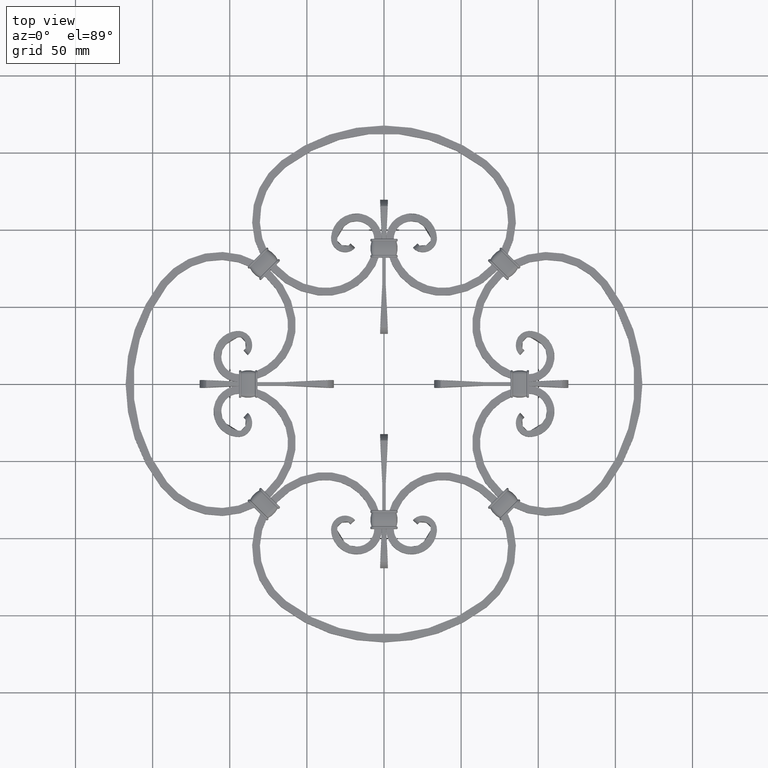
[diagram: clean part render]
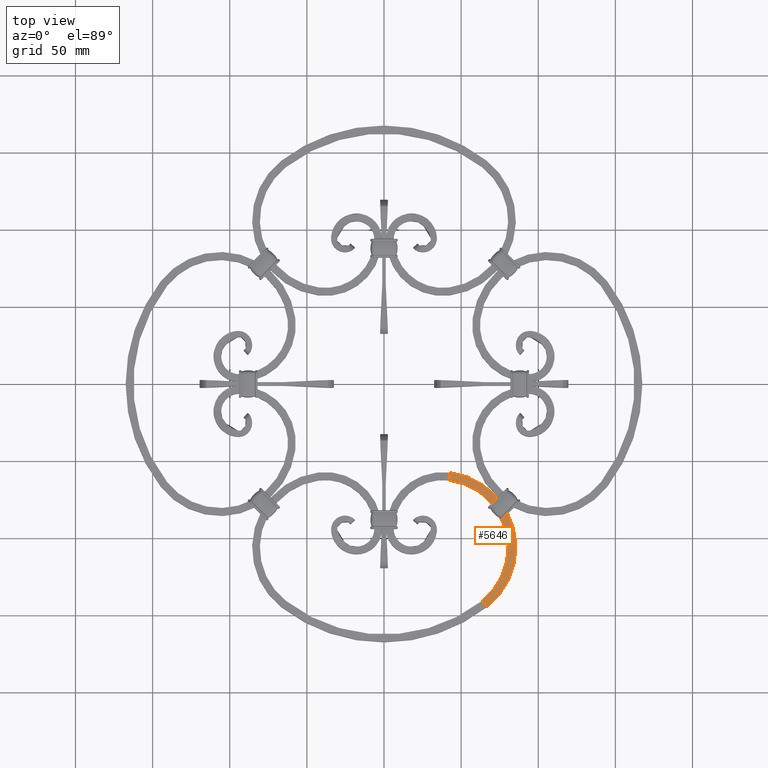
[diagram: same view with one face highlighted and labeled with its STEP entity id]
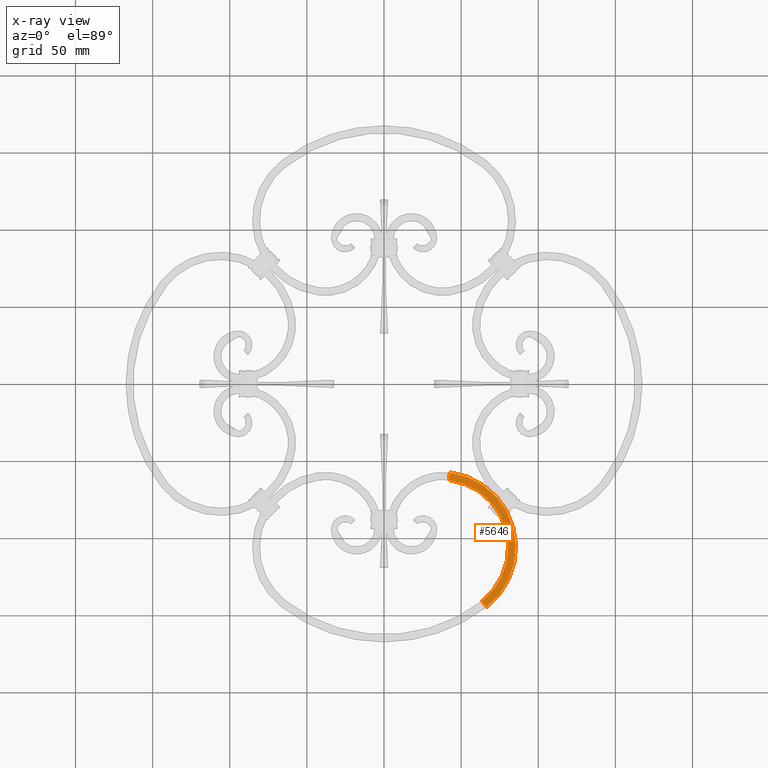
[diagram: x-ray of the same camera — body ghosted, the highlighted face saturated]
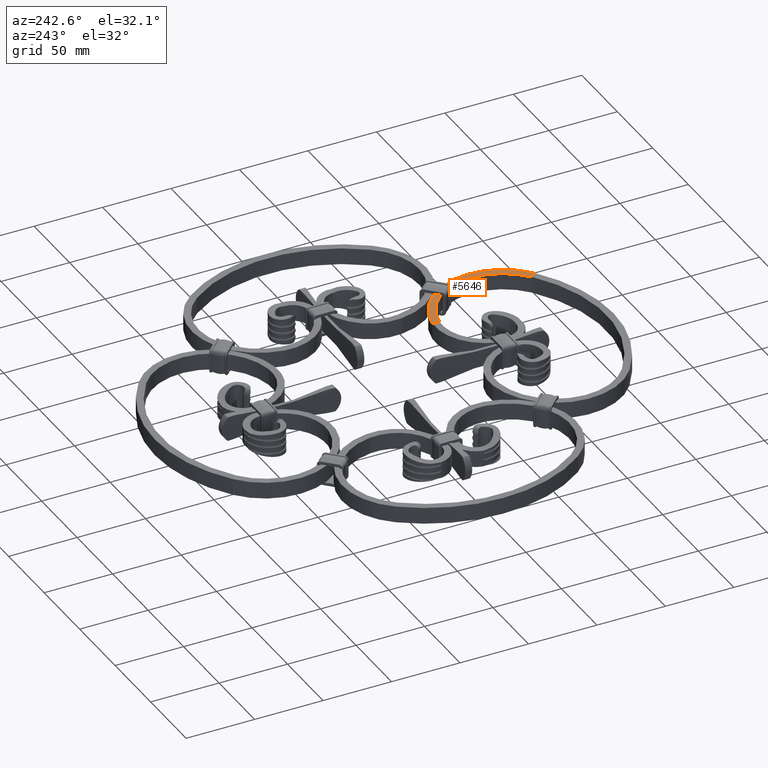
[diagram: same view with one face highlighted and labeled with its STEP entity id]
A machine part, top view. The second image highlights one B-rep face of the part: STEP entity #5646.
The next image is the same camera in x-ray: the body ghosted, the highlighted face saturated — about 0% of this face is hidden behind the body in this view.
A second angle (auxiliary view) of the same face is appended — the face is thin or edge-on in the first view.
In plain terms, the highlighted planar face has unit normal (0, -0, 1).
Its self-contained STEP definition (entity closure, byte-faithful):
#2352 = CARTESIAN_POINT ( 'NONE',  ( 63.48172815069381869, -140.7746660638400726, 5.999999999999998224 ) ) ;
#2626 = DIRECTION ( 'NONE',  ( 2.220446049250312588E-16, 1.000000000000000000, 0.000000000000000000 ) ) ;
#3074 = ORIENTED_EDGE ( 'NONE', *, *, #51298, .T. ) ;
#5646 = ADVANCED_FACE ( 'NONE', ( #42155 ), #32785, .T. ) ;
#10199 = DIRECTION ( 'NONE',  ( 0.6126993639093377686, -0.7903160693451025676, 0.000000000000000000 ) ) ;
#10414 = DIRECTION ( 'NONE',  ( 0.000000000000000000, -0.000000000000000000, 1.000000000000000000 ) ) ;
#13082 = EDGE_CURVE ( 'NONE', #44478, #34668, #46168, .T. ) ;
#13475 = DIRECTION ( 'NONE',  ( 0.000000000000000000, -0.000000000000000000, 1.000000000000000000 ) ) ;
#17026 = CARTESIAN_POINT ( 'NONE',  ( 66.54522497024052541, -144.7262464105655511, 5.999999999999998224 ) ) ;
#18988 = VECTOR ( 'NONE', #54610, 1000.000000000000000 ) ;
#19421 = LINE ( 'NONE', #50164, #67345 ) ;
#20630 = CARTESIAN_POINT ( 'NONE',  ( 36.55927214299119754, -106.0476027397259742, 5.999999999999998224 ) ) ;
#20918 = VERTEX_POINT ( 'NONE', #25969 ) ;
#23742 = DIRECTION ( 'NONE',  ( -0.6126993639093378796, 0.7903160693451024565, 0.000000000000000000 ) ) ;
#25935 = CARTESIAN_POINT ( 'NONE',  ( 42.75000000000000711, -57.49999999999995737, 5.999999999999998224 ) ) ;
#25969 = CARTESIAN_POINT ( 'NONE',  ( 42.11752801520481171, -62.45983660904760626, 5.999999999999998224 ) ) ;
#27630 = VERTEX_POINT ( 'NONE', #2352 ) ;
#29042 = ORIENTED_EDGE ( 'NONE', *, *, #50982, .F. ) ;
#31750 = AXIS2_PLACEMENT_3D ( 'NONE', #20630, #10414, #10199 ) ;
#32327 = EDGE_CURVE ( 'NONE', #44478, #27630, #19421, .T. ) ;
#32495 = ORIENTED_EDGE ( 'NONE', *, *, #13082, .T. ) ;
#32785 = PLANE ( 'NONE',  #42254 ) ;
#34668 = VERTEX_POINT ( 'NONE', #25935 ) ;
#34924 = AXIS2_PLACEMENT_3D ( 'NONE', #44250, #13475, #49669 ) ;
#39811 = CARTESIAN_POINT ( 'NONE',  ( 42.11752801520481171, -62.45983660904759915, 5.999999999999998224 ) ) ;
#41594 = LINE ( 'NONE', #39811, #18988 ) ;
#42155 = FACE_OUTER_BOUND ( 'NONE', #46784, .T. ) ;
#42254 = AXIS2_PLACEMENT_3D ( 'NONE', #53610, #49712, #2626 ) ;
#43937 = ORIENTED_EDGE ( 'NONE', *, *, #32327, .F. ) ;
#44250 = CARTESIAN_POINT ( 'NONE',  ( 36.55927214299119754, -106.0476027397259742, 5.999999999999998224 ) ) ;
#44478 = VERTEX_POINT ( 'NONE', #17026 ) ;
#46168 = CIRCLE ( 'NONE', #31750, 48.94072785700882378 ) ;
#46784 = EDGE_LOOP ( 'NONE', ( #29042, #43937, #32495, #3074 ) ) ;
#47352 = CIRCLE ( 'NONE', #34924, 43.94072785700881667 ) ;
#49669 = DIRECTION ( 'NONE',  ( 0.6126993639093377686, -0.7903160693451024565, 0.000000000000000000 ) ) ;
#49712 = DIRECTION ( 'NONE',  ( 0.000000000000000000, -0.000000000000000000, 1.000000000000000000 ) ) ;
#50164 = CARTESIAN_POINT ( 'NONE',  ( 63.48172815069381869, -140.7746660638400442, 5.999999999999998224 ) ) ;
#50982 = EDGE_CURVE ( 'NONE', #27630, #20918, #47352, .T. ) ;
#51298 = EDGE_CURVE ( 'NONE', #34668, #20918, #41594, .T. ) ;
#53610 = CARTESIAN_POINT ( 'NONE',  ( 63.48172815069381869, -140.7746660638400442, 5.999999999999998224 ) ) ;
#54610 = DIRECTION ( 'NONE',  ( -0.1264943969590400785, -0.9919673218095286238, 0.000000000000000000 ) ) ;
#67345 = VECTOR ( 'NONE', #23742, 1000.000000000000227 ) ;